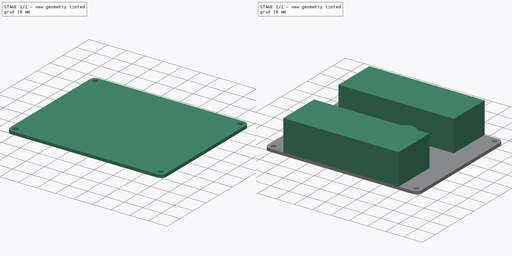
[diagram: build sequence overview — one tinted view per stage of 2, left to right]
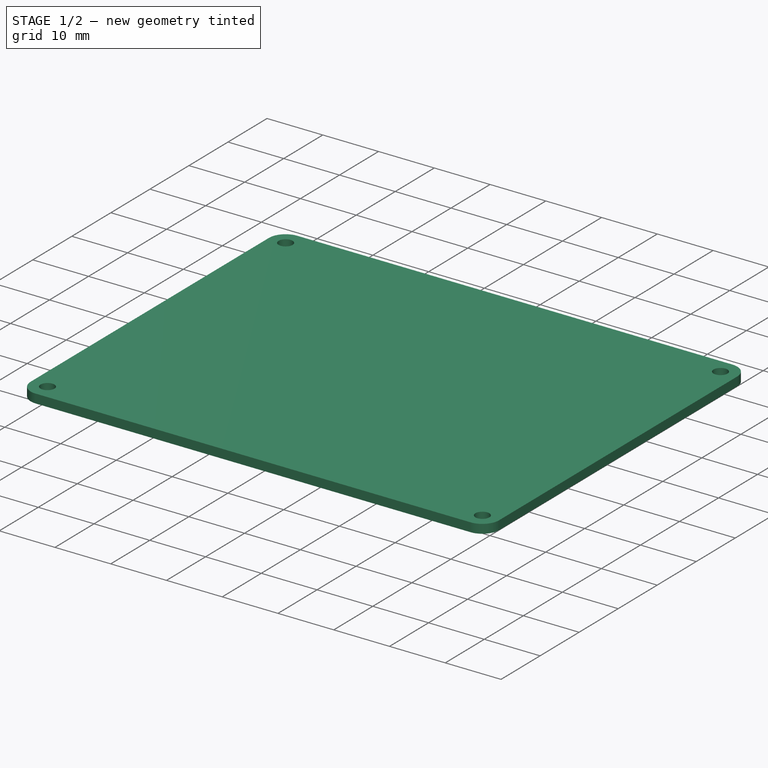
[diagram: stage 1 of 2 — iso view after this stage's code; geometry added in this stage tinted green]
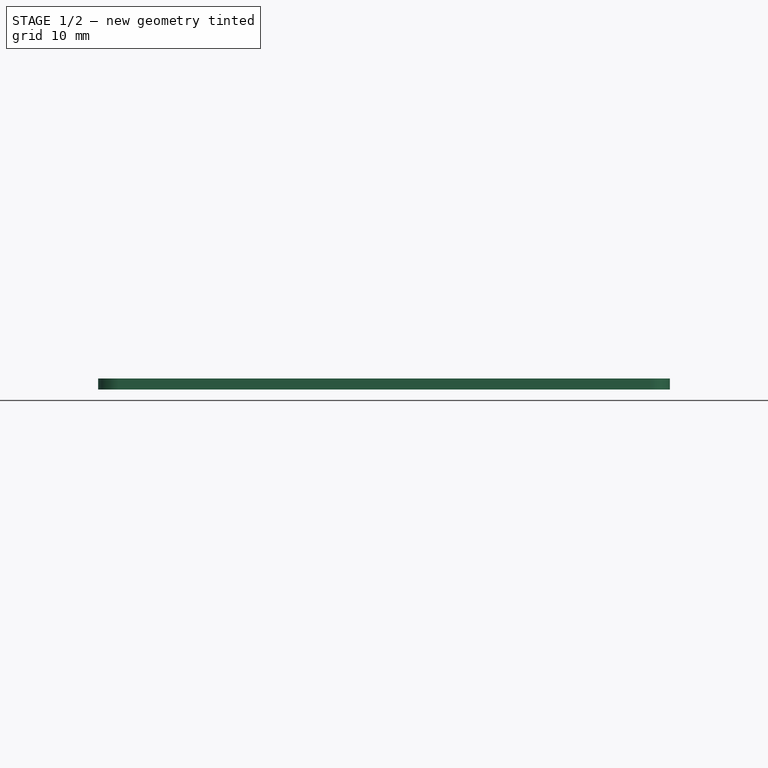
[diagram: stage 1 of 2 — front view after this stage's code; geometry added in this stage tinted green]
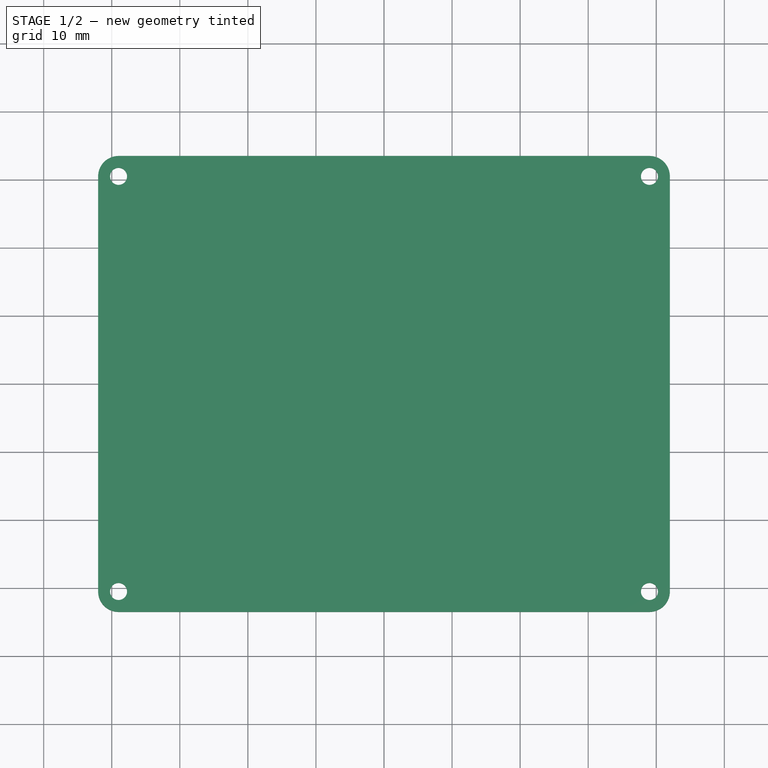
[diagram: stage 1 of 2 — top view after this stage's code; geometry added in this stage tinted green]
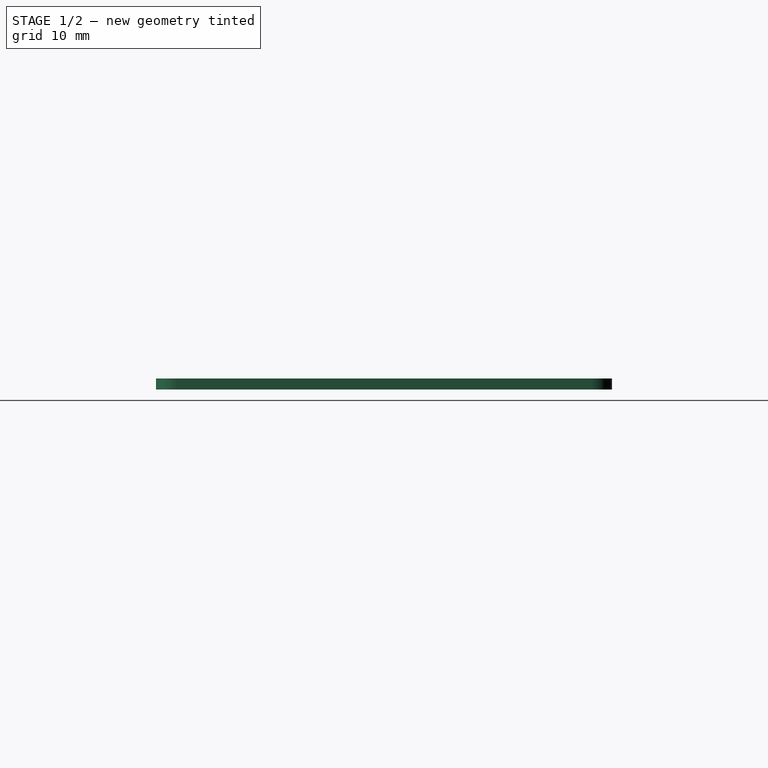
[diagram: stage 1 of 2 — right view after this stage's code; geometry added in this stage tinted green]
FCSTD DOCUMENT  (FreeCAD 0.21R33771 (Git))
Label: YukonBoard
License: All rights reserved
LicenseURL: http://en.wikipedia.org/wiki/All_rights_reserved
objects: Sketcher::SketchObject×4, PartDesign::Pad×3, PartDesign::Pocket×1, PartDesign::Body×1, Spreadsheet::Sheet×1
note: 13 computed .brp shape members not serialized (recipe doc carries the construction recipe); baked Part::Feature solids carry a one-line shape summary decoded from their .brp

FEATURE [Sketcher::SketchObject] Sketch026
  FullyConstrained = true
  MapMode = 5
  Support = -> [XY_Plane051]
  sketch-geometry (12):
    g0: LineSegment StartX=39 StartY=33.5 StartZ=0 EndX=-39 EndY=33.5 EndZ=0
    g1: LineSegment StartX=-42 StartY=30.5 StartZ=0 EndX=-42 EndY=-30.5 EndZ=0
    g2: LineSegment StartX=-39 StartY=-33.5 StartZ=0 EndX=39 EndY=-33.5 EndZ=0
    g3: LineSegment StartX=42 StartY=-30.5 StartZ=0 EndX=42 EndY=30.5 EndZ=0
    g4: ArcOfCircle CenterX=39 CenterY=-30.5 CenterZ=0 NormalX=0 NormalY=0 NormalZ=1 AngleXU=0 Radius=3 StartAngle=4.71239 EndAngle=6.28319
    g5: GeomPoint X=42 Y=-33.5 Z=0
    g6: ArcOfCircle CenterX=39 CenterY=30.5 CenterZ=0 NormalX=0 NormalY=0 NormalZ=1 AngleXU=0 Radius=3 StartAngle=2.76e-14 EndAngle=1.5708
    g7: GeomPoint X=42 Y=33.5 Z=0
    g8: ArcOfCircle CenterX=-39 CenterY=30.5 CenterZ=0 NormalX=0 NormalY=0 NormalZ=1 AngleXU=0 Radius=3 StartAngle=1.5708 EndAngle=3.14159
    g9: GeomPoint X=-42 Y=33.5 Z=0
    g10: ArcOfCircle CenterX=-39 CenterY=-30.5 CenterZ=0 NormalX=0 NormalY=0 NormalZ=1 AngleXU=0 Radius=3 StartAngle=3.14159 EndAngle=4.71239
    g11: GeomPoint X=-42 Y=-33.5 Z=0
  constraints (27):
    c: Horizontal(g0)
    c: Horizontal(g2)
    c: Vertical(g1)
    c: Vertical(g3)
    c: Symmetric(g9,g5,g-1)
    c: PointOnObject(g5,g3)
    c: PointOnObject(g5,g2)
    c: Tangent(g3,g4) = -1.5708
    c: Tangent(g2,g4) = -1.5708
    c: PointOnObject(g7,g3)
    c: PointOnObject(g7,g0)
    c: Tangent(g3,g6) = -1.5708
    c: Tangent(g0,g6) = -1.5708
    c: PointOnObject(g9,g0)
    c: PointOnObject(g9,g1)
    c: Tangent(g0,g8) = -1.5708
    c: Tangent(g1,g8) = -1.5708
    c: PointOnObject(g11,g1)
    c: PointOnObject(g11,g2)
    c: Tangent(g1,g10) = -1.5708
    c: Tangent(g2,g10) = -1.5708
    c: DistanceY(g2,g0) = 67
    c: DistanceX(g1,g3) = 84
    c: Equal(g6,g4)
    c: Equal(g4,g10)
    c: Equal(g10,g8)
    c: Diameter(g4) = 6
FEATURE [PartDesign::Pad] Pad009  label="YukonMainBoard"
  Direction = (0,0,1)
  Length = 1.6
  Length2 = 10
  Profile = -> Sketch026
  ReferenceAxis = -> Sketch026 [N_Axis]
  Type = 0
FEATURE [Sketcher::SketchObject] Sketch027
  ExternalGeometry = -> [Pad009]
  FullyConstrained = true
  MapMode = 5
  Placement = pos=(0,0,1.6) rot=(0,0,1;0rad)
  Support = -> [Pad009]
  sketch-geometry (4):
    g0: Circle CenterX=-39 CenterY=30.5 CenterZ=0 NormalX=0 NormalY=0 NormalZ=1 AngleXU=0 Radius=1.25
    g1: Circle CenterX=39 CenterY=30.5 CenterZ=0 NormalX=0 NormalY=0 NormalZ=1 AngleXU=0 Radius=1.25
    g2: Circle CenterX=39 CenterY=-30.5 CenterZ=0 NormalX=0 NormalY=0 NormalZ=1 AngleXU=0 Radius=1.25
    g3: Circle CenterX=-39 CenterY=-30.5 CenterZ=0 NormalX=0 NormalY=0 NormalZ=1 AngleXU=0 Radius=1.25
  constraints (9):
    c: Symmetric(g3,g2,g-2)
    c: Symmetric(g2,g1,g-1)
    c: Symmetric(g3,g0,g-1)
    c: Equal(g0,g3)
    c: Equal(g3,g2)
    c: Equal(g2,g1)
    c: Diameter(g1) = 2.5
    c: DistanceX(g0,g1) = 78
    c: DistanceY(g2,g1) = 61
FEATURE [PartDesign::Pocket] Pocket010  label="YukonMountingHoles"
  BaseFeature = -> Pad009
  Direction = (0,0,-1)
  Length = 5
  Length2 = 5
  Profile = -> Sketch027
  ReferenceAxis = -> Sketch027 [N_Axis]
  Type = 1
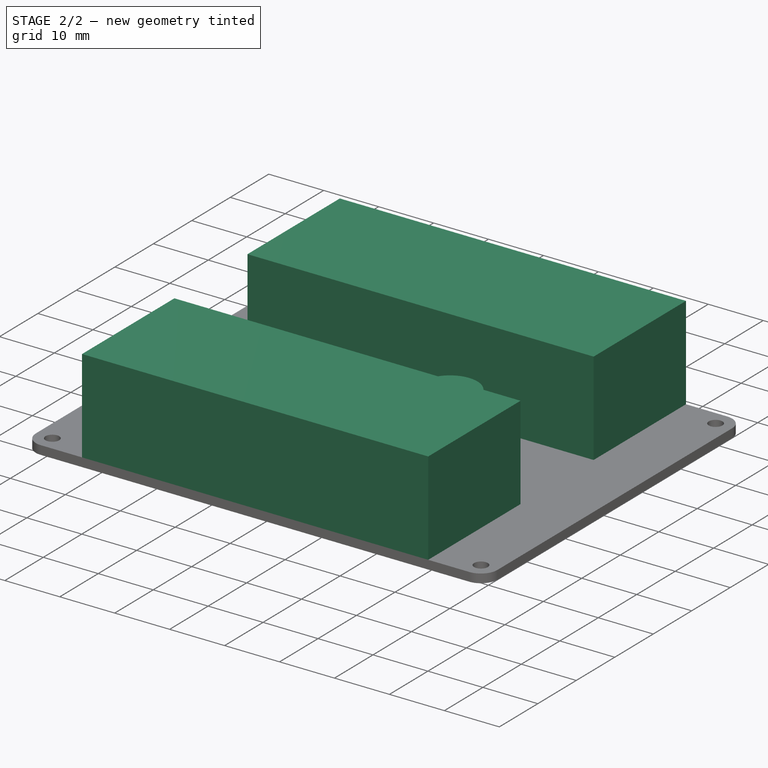
[diagram: stage 2 of 2 — iso view after this stage's code; geometry added in this stage tinted green]
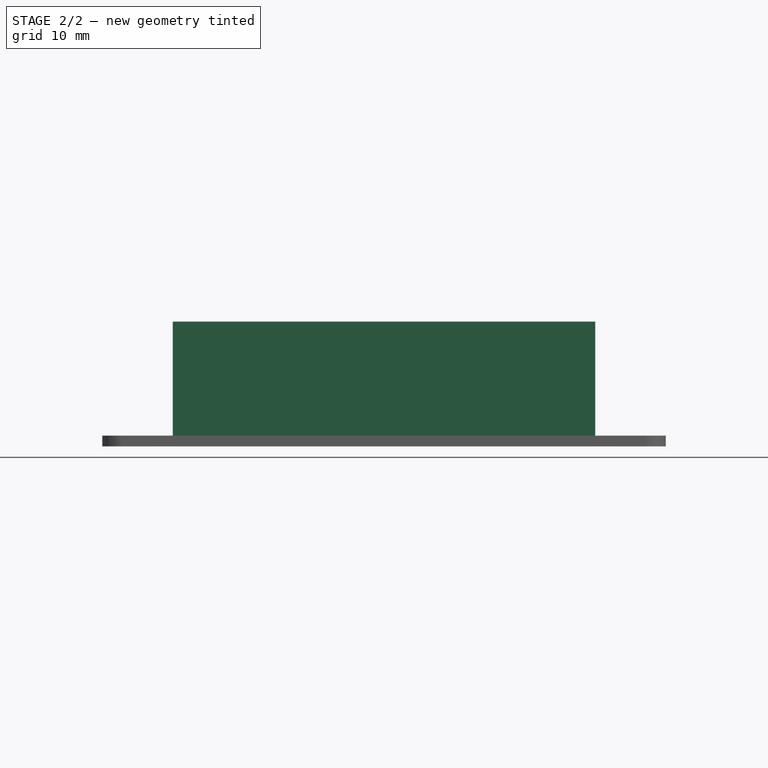
[diagram: stage 2 of 2 — front view after this stage's code; geometry added in this stage tinted green]
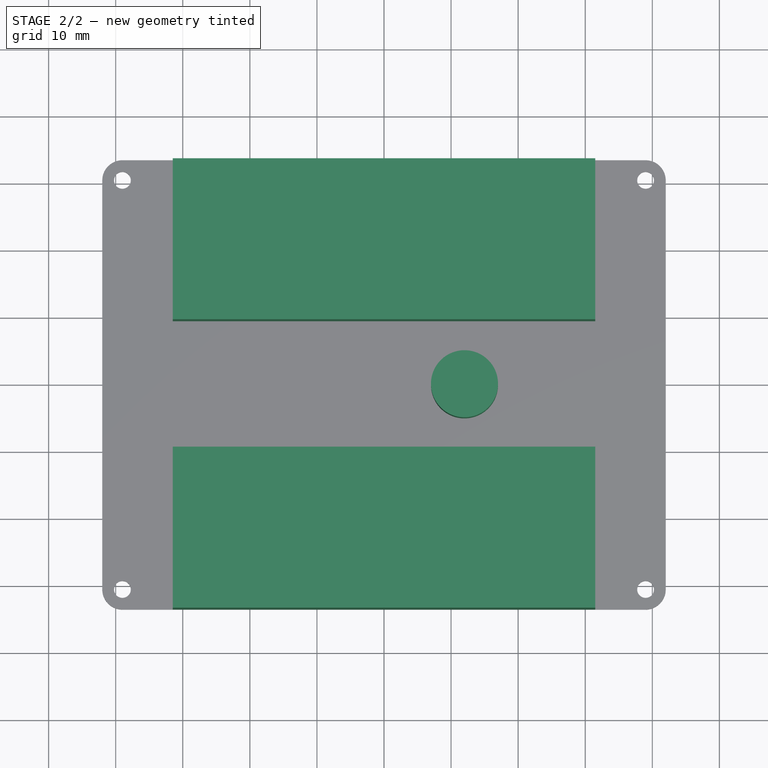
[diagram: stage 2 of 2 — top view after this stage's code; geometry added in this stage tinted green]
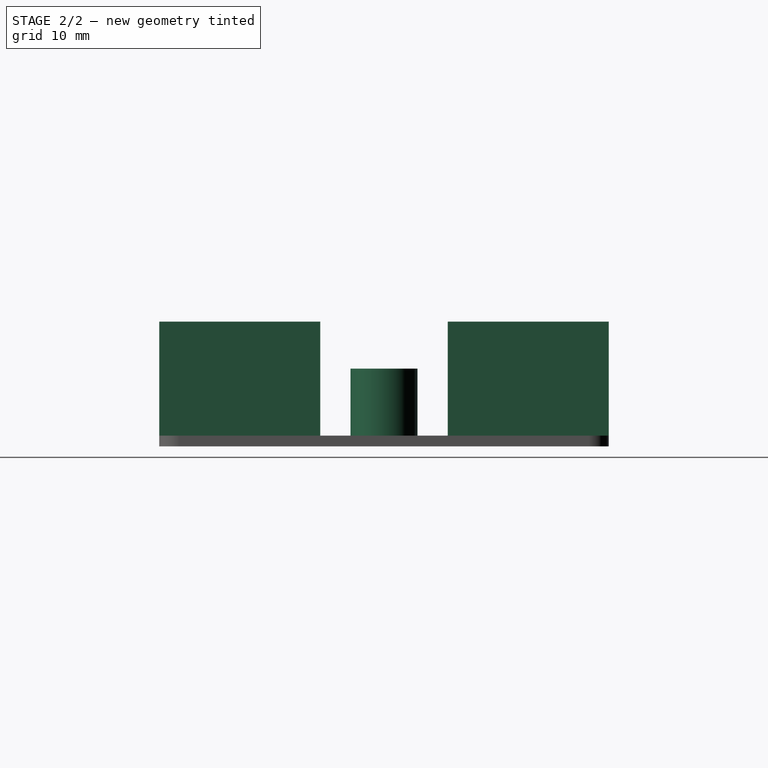
[diagram: stage 2 of 2 — right view after this stage's code; geometry added in this stage tinted green]
FEATURE [Sketcher::SketchObject] Sketch028
  ExternalGeometry = -> [Pocket010]
  FullyConstrained = true
  MapMode = 5
  Placement = pos=(0,0,1.6) rot=(0,0,1;0rad)
  Support = -> [Pocket010]
  sketch-geometry (1):
    g0: Circle CenterX=12 CenterY=0 CenterZ=0 NormalX=0 NormalY=0 NormalZ=1 AngleXU=0 Radius=5
  constraints (3):
    c: PointOnObject(g0,g-1)
    c: Diameter(g0) = 10
    c: DistanceX(g0,g-3) = 30
FEATURE [PartDesign::Pad] Pad010  label="YukonCap"
  BaseFeature = -> Pocket010
  Direction = (0,0,1)
  Length = 10
  Length2 = 10
  Profile = -> Sketch028
  ReferenceAxis = -> Sketch028 [N_Axis]
  Type = 0
FEATURE [Sketcher::SketchObject] Sketch029
  ExternalGeometry = -> [Pad010]
  FullyConstrained = true
  MapMode = 5
  Placement = pos=(0,0,1.6) rot=(0,0,1;0rad)
  Support = -> [Pad010]
  sketch-geometry (8):
    g0: LineSegment StartX=-31.5 StartY=33.5 StartZ=0 EndX=31.5 EndY=33.5 EndZ=0
    g1: LineSegment StartX=31.5 StartY=33.5 StartZ=0 EndX=31.5 EndY=9.5 EndZ=0
    g2: LineSegment StartX=31.5 StartY=9.5 StartZ=0 EndX=-31.5 EndY=9.5 EndZ=0
    g3: LineSegment StartX=-31.5 StartY=9.5 StartZ=0 EndX=-31.5 EndY=33.5 EndZ=0
    g4: LineSegment StartX=31.5 StartY=-33.5 StartZ=0 EndX=-31.5 EndY=-33.5 EndZ=0
    g5: LineSegment StartX=-31.5 StartY=-33.5 StartZ=0 EndX=-31.5 EndY=-9.5 EndZ=0
    g6: LineSegment StartX=-31.5 StartY=-9.5 StartZ=0 EndX=31.5 EndY=-9.5 EndZ=0
    g7: LineSegment StartX=31.5 StartY=-9.5 StartZ=0 EndX=31.5 EndY=-33.5 EndZ=0
  constraints (22):
    c: Coincident(g0,g1)
    c: Coincident(g1,g2)
    c: Coincident(g2,g3)
    c: Coincident(g3,g0)
    c: Horizontal(g0)
    c: Horizontal(g2)
    c: Vertical(g1)
    c: Vertical(g3)
    c: PointOnObject(g0,g-3)
    c: Coincident(g4,g5)
    c: Coincident(g5,g6)
    c: Coincident(g6,g7)
    c: Coincident(g7,g4)
    c: Horizontal(g4)
    c: Vertical(g5)
    c: Vertical(g7)
    c: PointOnObject(g4,g-4)
    c: Symmetric(g6,g1,g-1)
    c: DistanceX(g6,g6) = 63
    c: Equal(g2,g6)
    c: DistanceY(g5,g5) = 24
    c: Symmetric(g5,g6,g-2)
FEATURE [PartDesign::Pad] Pad011  label="YukonModules"
  BaseFeature = -> Pad010
  Direction = (0,0,1)
  Length = 17
  Length2 = 10
  Profile = -> Sketch029
  ReferenceAxis = -> Sketch029 [N_Axis]
  Type = 0
FEATURE [PartDesign::Body] Body008  label="Yukon"
  Group = -> [Sketch026,Pad009,Sketch027,Pocket010,Sketch028,Pad010,Sketch029,Pad011]
  Origin = -> Origin051
  Tip = -> Pad011
FEATURE [Spreadsheet::Sheet] Spreadsheet  label="YukonSheet"
  cells = A1='Yukon Holes; D1='Board; A2='width_spacing; B2(width_spacing)==61 mm; D2='width; E2(width)==67 mm; A3='hole_diam; B3(hole_diam)==2.5 mm; D3='length; E3(length)==84 mm; A4='length_spacing; B4(length_spacing)==78 mm
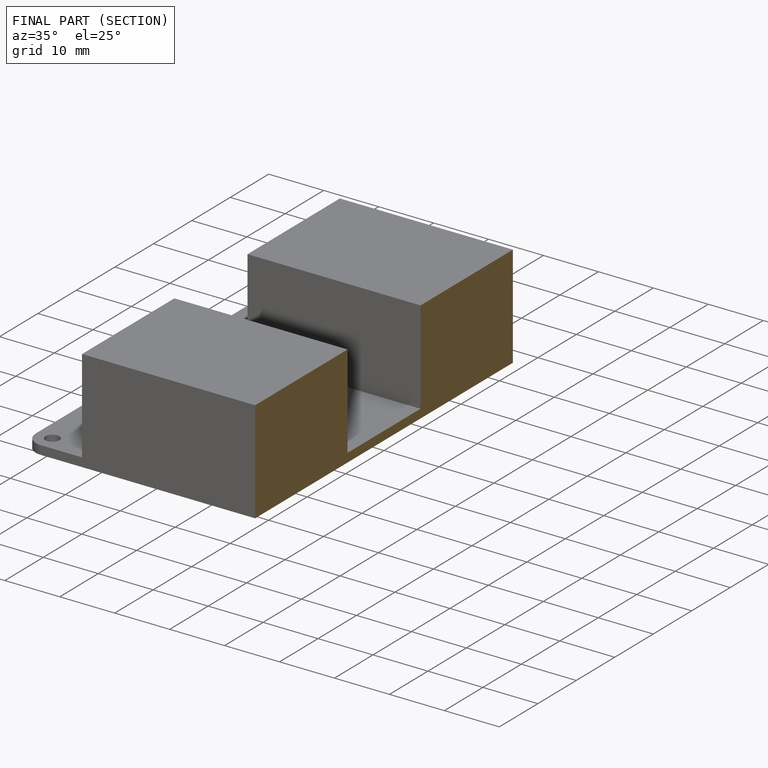
[diagram: finished part — half-section view (interior)]
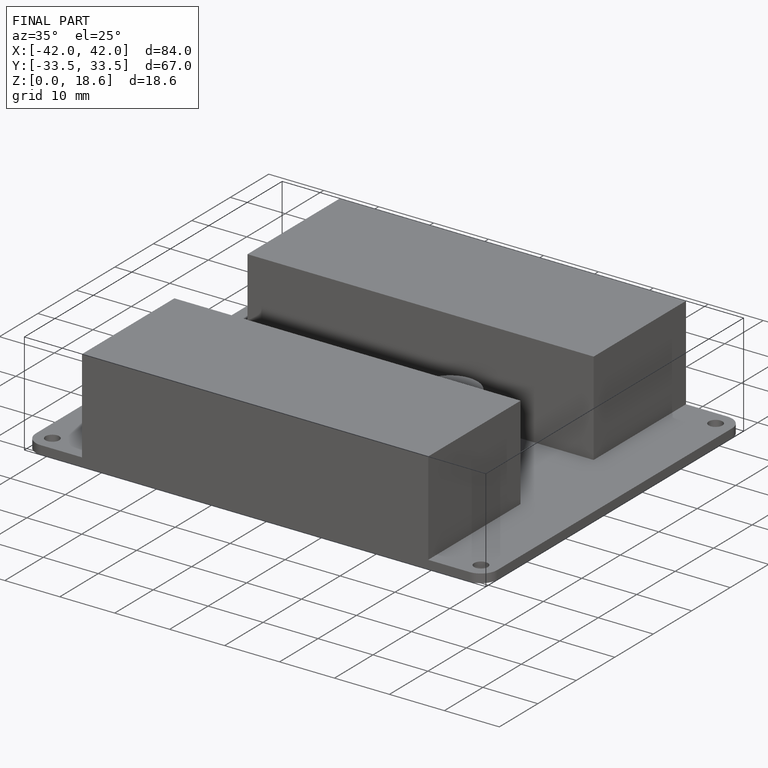
[diagram: finished part — iso view with bounding-box wireframe]
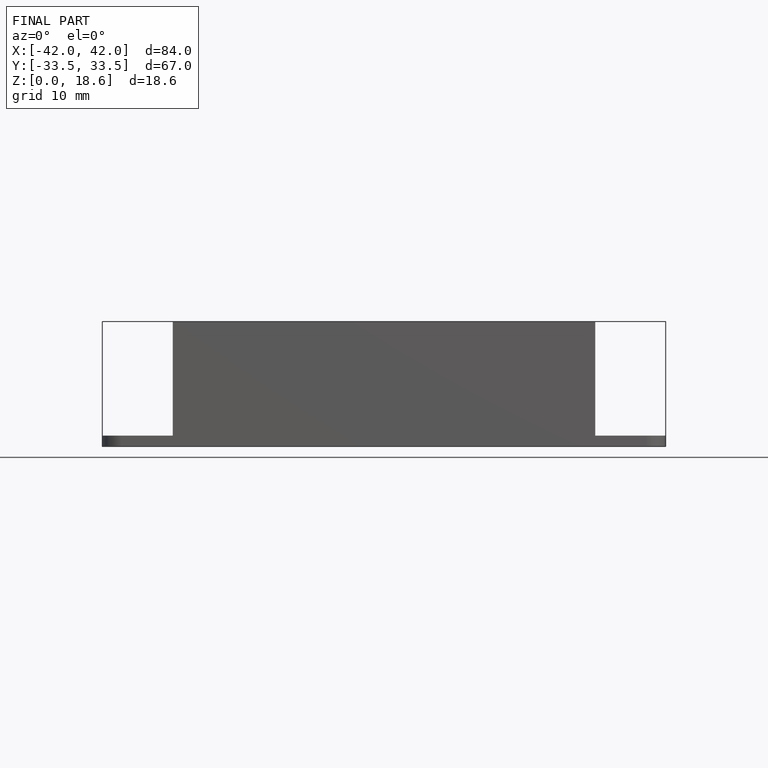
[diagram: finished part — front view with bounding-box wireframe]
